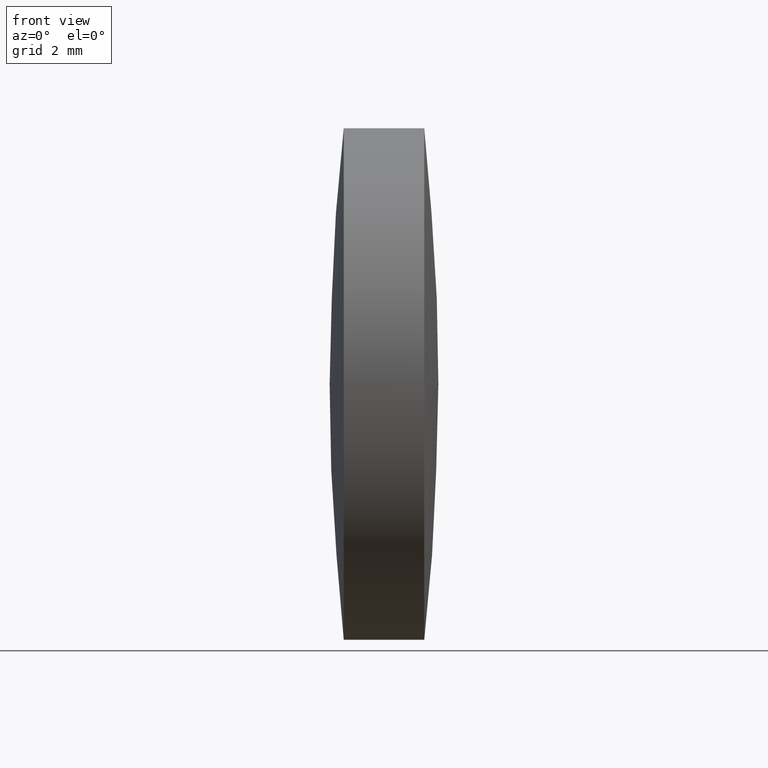
[diagram: clean part render]
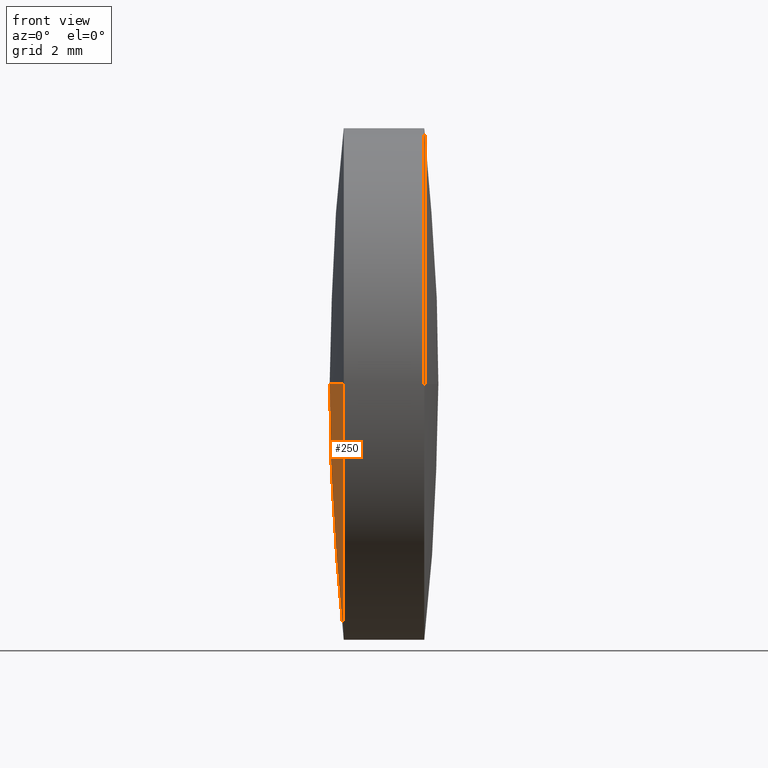
[diagram: same view with one face highlighted and labeled with its STEP entity id]
A machine part, front view. The second image highlights one B-rep face of the part: STEP entity #250.
In plain terms, the highlighted spherical surface has radius 57.8123 mm.
Its self-contained STEP definition (entity closure, byte-faithful):
#1 = EDGE_CURVE ( 'NONE', #294, #84, #189, .T. ) ;
#4 = VERTEX_POINT ( 'NONE', #194 ) ;
#12 = CARTESIAN_POINT ( 'NONE',  ( 41.87926831590270600, 24.30805651159235800, 0.0000000000000000000 ) ) ;
#13 = SPHERICAL_SURFACE ( 'NONE', #200, 57.81234527563819400 ) ;
#24 = CIRCLE ( 'NONE', #277, 6.349999999999997900 ) ;
#25 = CARTESIAN_POINT ( 'NONE',  ( 99.69161359154090000, 24.30805651159235500, 0.0000000000000000000 ) ) ;
#41 = CIRCLE ( 'NONE', #262, 57.81234527563818700 ) ;
#42 = CARTESIAN_POINT ( 'NONE',  ( 42.22906260161698100, 24.30805651159239000, 0.0000000000000000000 ) ) ;
#58 = AXIS2_PLACEMENT_3D ( 'NONE', #25, #132, #159 ) ;
#65 = CIRCLE ( 'NONE', #334, 6.349999999999997900 ) ;
#73 = DIRECTION ( 'NONE',  ( -1.000000000000000000, -0.0000000000000000000, -0.0000000000000000000 ) ) ;
#78 = VERTEX_POINT ( 'NONE', #222 ) ;
#83 = CARTESIAN_POINT ( 'NONE',  ( 42.22906260161698100, 30.65805651159237000, 0.0000000000000000000 ) ) ;
#84 = VERTEX_POINT ( 'NONE', #12 ) ;
#88 = DIRECTION ( 'NONE',  ( -1.000000000000000000, -0.0000000000000000000, -0.0000000000000000000 ) ) ;
#98 = DIRECTION ( 'NONE',  ( 0.0000000000000000000, 0.0000000000000000000, 1.000000000000000000 ) ) ;
#99 = EDGE_CURVE ( 'NONE', #294, #4, #24, .T. ) ;
#132 = DIRECTION ( 'NONE',  ( -0.0000000000000000000, 0.0000000000000000000, 1.000000000000000000 ) ) ;
#156 = ORIENTED_EDGE ( 'NONE', *, *, #1, .F. ) ;
#158 = EDGE_CURVE ( 'NONE', #78, #84, #41, .T. ) ;
#159 = DIRECTION ( 'NONE',  ( 1.000000000000000000, 0.0000000000000000000, 0.0000000000000000000 ) ) ;
#174 = DIRECTION ( 'NONE',  ( -0.0000000000000000000, 0.0000000000000000000, -1.000000000000000000 ) ) ;
#176 = DIRECTION ( 'NONE',  ( 0.0000000000000000000, 1.000000000000000000, 1.224646799147353500E-016 ) ) ;
#179 = DIRECTION ( 'NONE',  ( 0.0000000000000000000, 1.224646799147353200E-016, -1.000000000000000000 ) ) ;
#189 = CIRCLE ( 'NONE', #58, 57.81234527563820800 ) ;
#194 = CARTESIAN_POINT ( 'NONE',  ( 42.22906260161698100, 24.30805651159239000, -6.349999999999997900 ) ) ;
#197 = ORIENTED_EDGE ( 'NONE', *, *, #240, .T. ) ;
#200 = AXIS2_PLACEMENT_3D ( 'NONE', #221, #174, #253 ) ;
#221 = CARTESIAN_POINT ( 'NONE',  ( 99.69161359154090000, 24.30805651159235500, 0.0000000000000000000 ) ) ;
#222 = CARTESIAN_POINT ( 'NONE',  ( 42.22906260161698100, 17.95805651159237500, -7.776507174585665500E-016 ) ) ;
#223 = CARTESIAN_POINT ( 'NONE',  ( 99.69161359154090000, 24.30805651159235500, 0.0000000000000000000 ) ) ;
#240 = EDGE_CURVE ( 'NONE', #4, #78, #65, .T. ) ;
#250 = ADVANCED_FACE ( 'NONE', ( #290 ), #13, .T. ) ;
#252 = ORIENTED_EDGE ( 'NONE', *, *, #99, .T. ) ;
#253 = DIRECTION ( 'NONE',  ( 0.0000000000000000000, 1.000000000000000000, 0.0000000000000000000 ) ) ;
#262 = AXIS2_PLACEMENT_3D ( 'NONE', #223, #179, #176 ) ;
#277 = AXIS2_PLACEMENT_3D ( 'NONE', #309, #73, #98 ) ;
#280 = DIRECTION ( 'NONE',  ( 0.0000000000000000000, 0.0000000000000000000, 1.000000000000000000 ) ) ;
#287 = ORIENTED_EDGE ( 'NONE', *, *, #158, .T. ) ;
#290 = FACE_OUTER_BOUND ( 'NONE', #305, .T. ) ;
#294 = VERTEX_POINT ( 'NONE', #83 ) ;
#305 = EDGE_LOOP ( 'NONE', ( #252, #197, #287, #156 ) ) ;
#309 = CARTESIAN_POINT ( 'NONE',  ( 42.22906260161698100, 24.30805651159239000, 0.0000000000000000000 ) ) ;
#334 = AXIS2_PLACEMENT_3D ( 'NONE', #42, #88, #280 ) ;